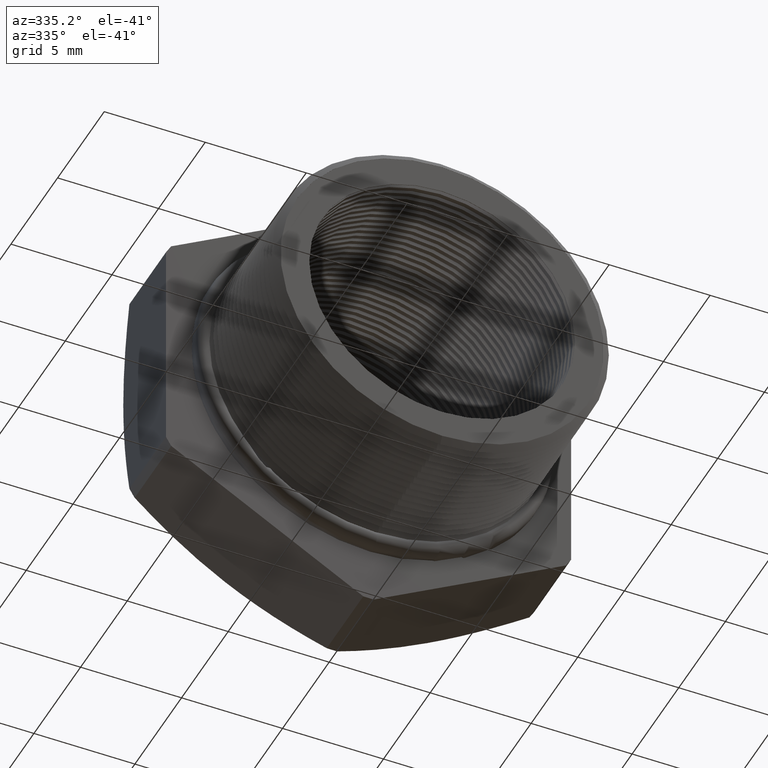
[diagram: clean part render]
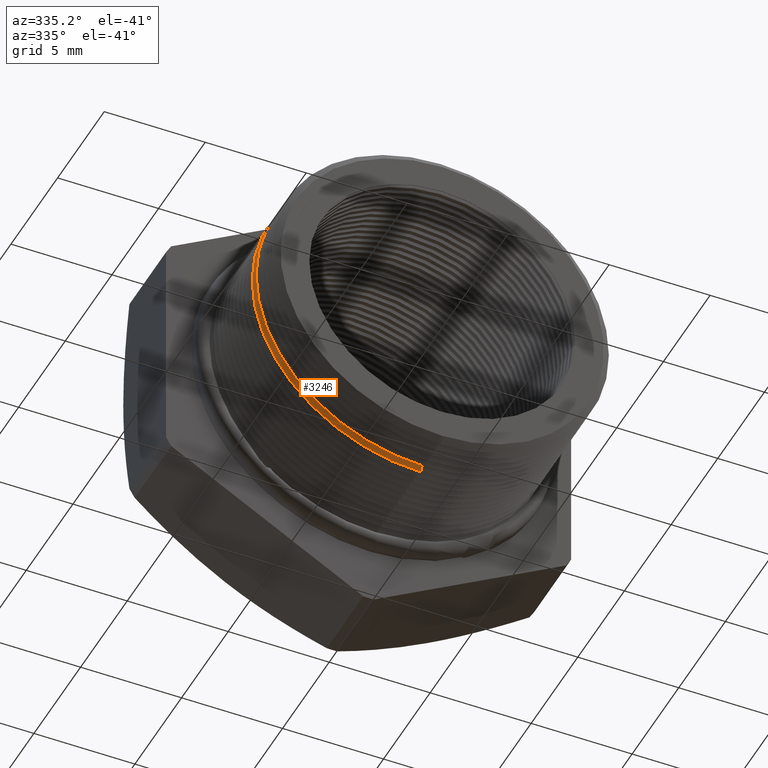
[diagram: same view with one face highlighted and labeled with its STEP entity id]
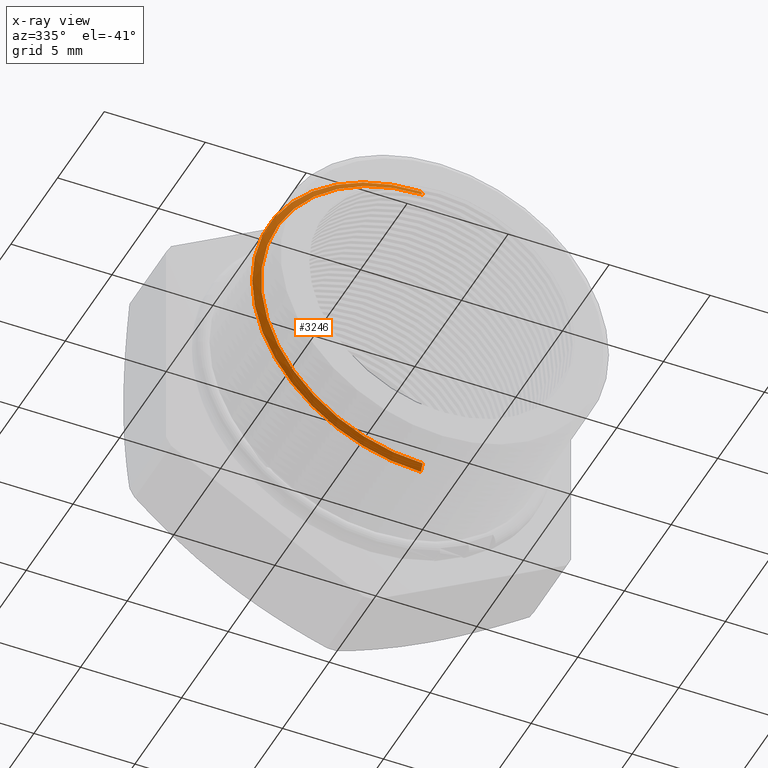
[diagram: x-ray of the same camera — body ghosted, the highlighted face saturated]
A machine part, auxiliary view. The second image highlights one B-rep face of the part: STEP entity #3246.
The next image is the same camera in x-ray: the body ghosted, the highlighted face saturated — about 0% of this face is hidden behind the body in this view.
In plain terms, the highlighted conical surface has half-angle 60 deg.
Its self-contained STEP definition (entity closure, byte-faithful):
#711 = CARTESIAN_POINT ( 'NONE',  ( 4.026318816969966200E-017, 0.007154890582947996000, 0.3287738815610546400 ) ) ;
#849 = DIRECTION ( 'NONE',  ( 0.0000000000000000000, 0.5000000000000008900, 0.8660254037844380400 ) ) ;
#850 = VECTOR ( 'NONE', #849, 39.37007874015748100 ) ;
#851 = CARTESIAN_POINT ( 'NONE',  ( 0.0000000000000000000, 0.007154890582947996000, 0.3287738815610546400 ) ) ;
#852 = LINE ( 'NONE', #851, #850 ) ;
#865 = LINE ( 'NONE', #926, #925 ) ;
#866 = CARTESIAN_POINT ( 'NONE',  ( 0.0000000000000000000, -0.0007974636441129503600, -0.3150000000000000000 ) ) ;
#867 = CARTESIAN_POINT ( 'NONE',  ( 3.857637417314162700E-017, -0.0007974636441129503600, 0.3150000000000000000 ) ) ;
#923 = CARTESIAN_POINT ( 'NONE',  ( 0.0000000000000000000, 0.007154890582947996000, -0.3287738815610546400 ) ) ;
#924 = DIRECTION ( 'NONE',  ( 1.060575238724906300E-016, 0.5000000000000008900, -0.8660254037844380400 ) ) ;
#925 = VECTOR ( 'NONE', #924, 39.37007874015748100 ) ;
#926 = CARTESIAN_POINT ( 'NONE',  ( 4.026318816969965600E-017, 0.007154890582947996000, -0.3287738815610546400 ) ) ;
#2567 = EDGE_CURVE ( 'NONE', #4457, #4456, #5617, .T. ) ;
#3245 = EDGE_CURVE ( 'NONE', #4460, #4380, #6825, .T. ) ;
#3246 = ADVANCED_FACE ( 'NONE', ( #6816 ), #6815, .T. ) ;
#3247 = EDGE_LOOP ( 'NONE', ( #3248, #3249, #3250, #3251 ) ) ;
#3248 = ORIENTED_EDGE ( 'NONE', *, *, #4459, .F. ) ;
#3249 = ORIENTED_EDGE ( 'NONE', *, *, #2567, .T. ) ;
#3250 = ORIENTED_EDGE ( 'NONE', *, *, #4436, .T. ) ;
#3251 = ORIENTED_EDGE ( 'NONE', *, *, #3245, .F. ) ;
#4380 = VERTEX_POINT ( 'NONE', #711 ) ;
#4436 = EDGE_CURVE ( 'NONE', #4456, #4380, #852, .T. ) ;
#4456 = VERTEX_POINT ( 'NONE', #867 ) ;
#4457 = VERTEX_POINT ( 'NONE', #866 ) ;
#4459 = EDGE_CURVE ( 'NONE', #4457, #4460, #865, .T. ) ;
#4460 = VERTEX_POINT ( 'NONE', #923 ) ;
#5613 = DIRECTION ( 'NONE',  ( 0.0000000000000000000, 0.0000000000000000000, 1.000000000000000000 ) ) ;
#5614 = DIRECTION ( 'NONE',  ( -0.0000000000000000000, 1.000000000000000000, -0.0000000000000000000 ) ) ;
#5615 = CARTESIAN_POINT ( 'NONE',  ( 0.0000000000000000000, -0.0007974636441129503600, 0.0000000000000000000 ) ) ;
#5616 = AXIS2_PLACEMENT_3D ( 'NONE', #5615, #5614, #5613 ) ;
#5617 = CIRCLE ( 'NONE', #5616, 0.3150000000000000000 ) ;
#6810 = DIRECTION ( 'NONE',  ( 0.0000000000000000000, 0.0000000000000000000, 1.000000000000000000 ) ) ;
#6811 = DIRECTION ( 'NONE',  ( -0.0000000000000000000, 1.000000000000000000, -0.0000000000000000000 ) ) ;
#6812 = CARTESIAN_POINT ( 'NONE',  ( 0.0000000000000000000, 0.007154890582947996000, 0.0000000000000000000 ) ) ;
#6813 = AXIS2_PLACEMENT_3D ( 'NONE', #6812, #6811, #6810 ) ;
#6815 = CONICAL_SURFACE ( 'NONE', #6813, 0.3287738815610546400, 1.047197551196596700 ) ;
#6816 = FACE_OUTER_BOUND ( 'NONE', #3247, .T. ) ;
#6817 = DIRECTION ( 'NONE',  ( 0.0000000000000000000, 0.0000000000000000000, 1.000000000000000000 ) ) ;
#6818 = DIRECTION ( 'NONE',  ( -0.0000000000000000000, 1.000000000000000000, -0.0000000000000000000 ) ) ;
#6819 = CARTESIAN_POINT ( 'NONE',  ( 0.0000000000000000000, 0.007154890582947996000, 0.0000000000000000000 ) ) ;
#6820 = AXIS2_PLACEMENT_3D ( 'NONE', #6819, #6818, #6817 ) ;
#6825 = CIRCLE ( 'NONE', #6820, 0.3287738815610546400 ) ;